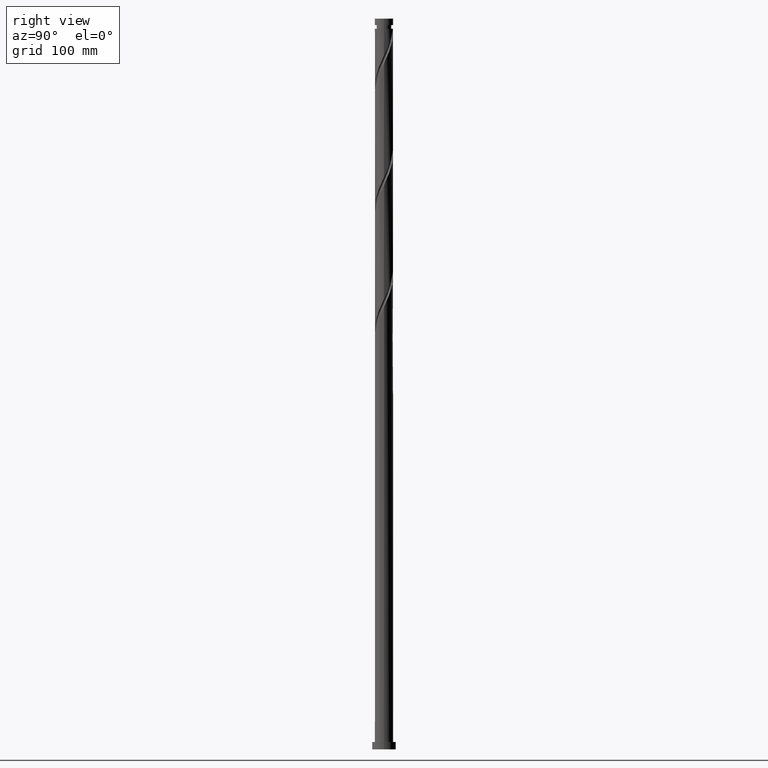
[diagram: clean part render]
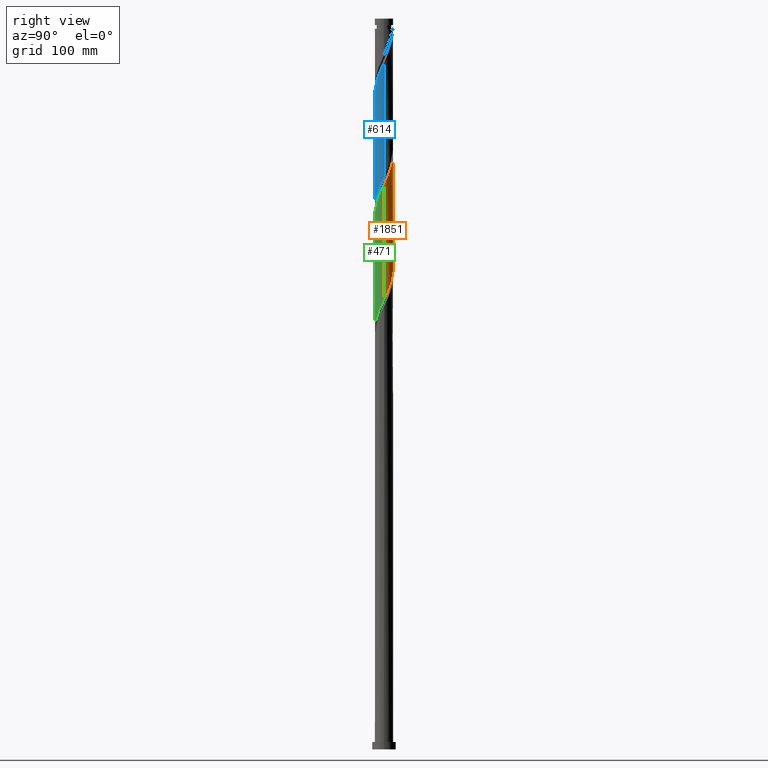
[diagram: same view with three faces highlighted in distinct colors, each labeled with its STEP entity id]
A machine part, right view with three faces highlighted in distinct colors.
Their STEP definitions:

[orange] entity #1851 — the highlighted cylindrical surface (edge-blend (fillet) strip) has radius 10 mm, axis along (-0, -0, -1).
#4 = CARTESIAN_POINT ( 'NONE',  ( -7.698012022128840393, 6.436398683911070506, 545.0387798783615381 ) ) ;
#24 = CARTESIAN_POINT ( 'NONE',  ( 8.129196827142976645, 5.882412435103549164, 506.4422886502914025 ) ) ;
#34 = CARTESIAN_POINT ( 'NONE',  ( 9.598750715611071627, 2.924141209081429604, 499.4247447906424213 ) ) ;
#44 = AXIS2_PLACEMENT_3D ( 'NONE', #1022, #717, #2330 ) ;
#74 = DIRECTION ( 'NONE',  ( -0.000000000000000000, -0.000000000000000000, -1.000000000000000000 ) ) ;
#102 =( BOUNDED_CURVE ( )  B_SPLINE_CURVE ( 2, ( #1807, #169, #894, #1411, #2151, #503, #1228, #154, #1844, #4, #577, #1874, #365, #1644, #743, #1675, #377, #1104, #775, #1094, #1831, #752, #225, #2021, #925, #1135, #1476, #2236, #388, #1632, #1126, #24, #588, #1115, #1315, #34, #1486, #2218, #208, #566, #729 ),
 .UNSPECIFIED., .F., .F. ) 
 B_SPLINE_CURVE_WITH_KNOTS ( ( 3, 2, 2, 2, 2, 2, 2, 2, 2, 2, 2, 2, 2, 2, 2, 2, 2, 2, 2, 2, 3 ),
 ( 0.6795295809515953245, 0.6842105263157894912, 0.6907894736842105088, 0.6973684210526315264, 0.7039473684210526550, 0.7105263157894736725, 0.7171052631578946901, 0.7236842105263158187, 0.7302631578947368363, 0.7368421052631578538, 0.7434210526315789824, 0.7500000000000000000, 0.7565789473684210176, 0.7631578947368421462, 0.7697368421052631637, 0.7763157894736841813, 0.7828947368421053099, 0.7894736842105263275, 0.7960526315789473450, 0.8026315789473684736, 0.8045295809515956575 ),
 .UNSPECIFIED. ) 
 CURVE ( )  GEOMETRIC_REPRESENTATION_ITEM ( )  RATIONAL_B_SPLINE_CURVE ( ( 0.9078162034606143127, 0.9068816855934213050, 0.9090909090909431445, 0.9059859027333700965, 0.9090909090909431445, 0.9059859027333700965, 0.9090909090909431445, 0.9059859027333700965, 0.9090909090909431445, 0.9059859027333700965, 0.9090909090909431445, 0.9059859027333700965, 0.9090909090909431445, 0.9059859027333700965, 0.9090909090909431445, 0.9059859027333700965, 0.9090909090909431445, 0.9059859027333700965, 0.9090909090909431445, 0.9059859027333700965, 0.9090909090909431445, 0.9059859027333700965, 0.9090909090909431445, 0.9059859027333700965, 0.9090909090909431445, 0.9059859027333700965, 0.9090909090909431445, 0.9059859027333700965, 0.9090909090909431445, 0.9059859027333700965, 0.9090909090909431445, 0.9059859027333700965, 0.9090909090909431445, 0.9059859027333700965, 0.9090909090909431445, 0.9059859027333700965, 0.9090909090909431445, 0.9059859027333700965, 0.9090909090909431445, 0.9081951262308917139, 0.9078162034606142017 ) ) 
 REPRESENTATION_ITEM ( '' )  );
#104 = CARTESIAN_POINT ( 'NONE',  ( -9.292644579133634508, 3.694151692323763836, 676.6177272467825787 ) ) ;
#147 = CARTESIAN_POINT ( 'NONE',  ( 7.698012022128849274, 6.436398683911067842, 632.7580781239756789 ) ) ;
#154 = CARTESIAN_POINT ( 'NONE',  ( -8.652417576018629930, 5.081563460323629933, 548.5475518081864266 ) ) ;
#163 = CARTESIAN_POINT ( 'NONE',  ( 9.370807733603886192, 3.588116432185851856, 625.7405342643262429 ) ) ;
#169 = CARTESIAN_POINT ( 'NONE',  ( -10.00000000000000888, 0.5889864175343123565, 558.5665007544391756 ) ) ;
#208 = CARTESIAN_POINT ( 'NONE',  ( 9.988632557599629536, 0.4766756017049183503, 494.1615868959054296 ) ) ;
#225 = CARTESIAN_POINT ( 'NONE',  ( 1.989974874213252809, 9.800000000000000711, 522.2317623345018092 ) ) ;
#297 = VERTEX_POINT ( 'NONE', #1772 ) ;
#304 = CARTESIAN_POINT ( 'NONE',  ( -3.575861195418844840, 9.338801674256604457, 659.0738675976598415 ) ) ;
#319 = CARTESIAN_POINT ( 'NONE',  ( -9.949134091119727685, 1.304357293080274482, 681.8808851415193431 ) ) ;
#332 = EDGE_CURVE ( 'NONE', #758, #1233, #102, .T. ) ;
#344 = VECTOR ( 'NONE', #74, 1000.000000000000000 ) ;
#365 = CARTESIAN_POINT ( 'NONE',  ( -5.862321014293805810, 8.101431498529709785, 539.7756219836248874 ) ) ;
#369 =( BOUNDED_CURVE ( )  B_SPLINE_CURVE ( 2, ( #887, #2145, #1434, #2161, #1390, #163, #679, #1800, #1045, #147, #860, #1222, #2129, #1257, #2337, #872, #695, #1378, #1616, #1421, #2352, #1005, #513, #498, #304, #1978, #1740, #2117, #470, #1194, #709, #1962, #1238, #485, #104, #1558, #1016, #319, #1583, #1209, #1752 ),
 .UNSPECIFIED., .F., .F. ) 
 B_SPLINE_CURVE_WITH_KNOTS ( ( 3, 2, 2, 2, 2, 2, 2, 2, 2, 2, 2, 2, 2, 2, 2, 2, 2, 2, 2, 2, 3 ),
 ( 0.4295295809515957686, 0.4342105263157894912, 0.4407894736842105088, 0.4473684210526315264, 0.4539473684210526550, 0.4605263157894736725, 0.4671052631578946901, 0.4736842105263158187, 0.4802631578947368363, 0.4868421052631578538, 0.4934210526315789824, 0.5000000000000000000, 0.5065789473684210176, 0.5131578947368420351, 0.5197368421052631637, 0.5263157894736842923, 0.5328947368421053099, 0.5394736842105263275, 0.5460526315789473450, 0.5526315789473683626, 0.5545295809515957686 ),
 .UNSPECIFIED. ) 
 CURVE ( )  GEOMETRIC_REPRESENTATION_ITEM ( )  RATIONAL_B_SPLINE_CURVE ( ( 0.9078162034606180875, 0.9068816855934254129, 0.9090909090909469192, 0.9059859027333740933, 0.9090909090909469192, 0.9059859027333740933, 0.9090909090909469192, 0.9059859027333740933, 0.9090909090909469192, 0.9059859027333740933, 0.9090909090909469192, 0.9059859027333740933, 0.9090909090909469192, 0.9059859027333740933, 0.9090909090909469192, 0.9059859027333740933, 0.9090909090909469192, 0.9059859027333740933, 0.9090909090909469192, 0.9059859027333740933, 0.9090909090909469192, 0.9059859027333740933, 0.9090909090909469192, 0.9059859027333740933, 0.9090909090909469192, 0.9059859027333740933, 0.9090909090909469192, 0.9059859027333740933, 0.9090909090909469192, 0.9059859027333740933, 0.9090909090909469192, 0.9059859027333740933, 0.9090909090909469192, 0.9059859027333740933, 0.9090909090909469192, 0.9059859027333740933, 0.9090909090909469192, 0.9059859027333740933, 0.9090909090909469192, 0.9081951262308954886, 0.9078162034606180875 ) ) 
 REPRESENTATION_ITEM ( '' )  );
#377 = CARTESIAN_POINT ( 'NONE',  ( -2.914153784332332631, 9.565966115414667570, 532.7580781239755652 ) ) ;
#388 = CARTESIAN_POINT ( 'NONE',  ( 6.414415119194313952, 7.671719408232513970, 511.7054465450280532 ) ) ;
#458 = EDGE_CURVE ( 'NONE', #297, #758, #1452, .T. ) ;
#470 = CARTESIAN_POINT ( 'NONE',  ( -6.414415119194313064, 7.671719408232525517, 666.0914114573090501 ) ) ;
#485 = CARTESIAN_POINT ( 'NONE',  ( -8.986538442656190284, 4.464162175566086965, 674.8633412818704755 ) ) ;
#498 = CARTESIAN_POINT ( 'NONE',  ( -2.802026026230766576, 9.635105980705032991, 657.3194816327475110 ) ) ;
#503 = CARTESIAN_POINT ( 'NONE',  ( -9.370807733603871981, 3.588116432185856741, 552.0563237380107466 ) ) ;
#513 = CARTESIAN_POINT ( 'NONE',  ( -1.989974874213248146, 9.800000000000007816, 655.5650956678350667 ) ) ;
#545 = CARTESIAN_POINT ( 'NONE',  ( -10.00000000000000178, 0.000000000000000000, 800.0000000000000000 ) ) ;
#566 = CARTESIAN_POINT ( 'NONE',  ( 10.00000000000000355, 0.2384733424516597144, 493.6566842203975511 ) ) ;
#577 = CARTESIAN_POINT ( 'NONE',  ( -7.115818394811933345, 7.026032206875808761, 543.2843939134494349 ) ) ;
#588 = CARTESIAN_POINT ( 'NONE',  ( 8.557867634899583464, 5.173287305334810071, 504.6879026853791288 ) ) ;
#632 = CARTESIAN_POINT ( 'NONE',  ( 10.00000000000000178, -4.627900892676237403E-15, 493.1503612019574234 ) ) ;
#679 = CARTESIAN_POINT ( 'NONE',  ( 9.011612654811258949, 4.334839946254741783, 627.4949202292388009 ) ) ;
#695 = CARTESIAN_POINT ( 'NONE',  ( 2.914153784332342845, 9.565966115414672899, 645.0387798783614244 ) ) ;
#709 = CARTESIAN_POINT ( 'NONE',  ( -7.589654370281420093, 6.511309126409864589, 669.6001833871334838 ) ) ;
#717 = DIRECTION ( 'NONE',  ( -0.000000000000000000, -0.000000000000000000, -1.000000000000000000 ) ) ;
#729 = CARTESIAN_POINT ( 'NONE',  ( 10.00000000000000355, -4.627900892676237403E-15, 493.1503612019574234 ) ) ;
#743 = CARTESIAN_POINT ( 'NONE',  ( -4.448914798436078399, 8.955844857759458932, 536.2668500538002263 ) ) ;
#752 = CARTESIAN_POINT ( 'NONE',  ( 1.177923722195735934, 9.964894019294979088, 523.9861482994142534 ) ) ;
#758 = VERTEX_POINT ( 'NONE', #1948 ) ;
#765 = EDGE_CURVE ( 'NONE', #2027, #297, #369, .T. ) ;
#775 = CARTESIAN_POINT ( 'NONE',  ( -1.299902251623954896, 9.915152754053920603, 529.2493061941510177 ) ) ;
#814 = CARTESIAN_POINT ( 'NONE',  ( 10.00000000000000178, 1.224646799147353454E-15, 800.0000000000000000 ) ) ;
#860 = CARTESIAN_POINT ( 'NONE',  ( 7.115818394811946668, 7.026032206875813202, 634.5124640888878957 ) ) ;
#872 = CARTESIAN_POINT ( 'NONE',  ( 3.706812335779582135, 9.324492448300055969, 643.2843939134494349 ) ) ;
#887 = CARTESIAN_POINT ( 'NONE',  ( 10.00000000000001421, -3.433603888114613474E-15, 617.9798301337131079 ) ) ;
#894 = CARTESIAN_POINT ( 'NONE',  ( -9.930858854084283038, 1.173900515484967322, 557.3194816327476246 ) ) ;
#925 = CARTESIAN_POINT ( 'NONE',  ( 3.575861195418849281, 9.338801674256592023, 518.7229904046772617 ) ) ;
#978 = CARTESIAN_POINT ( 'NONE',  ( 10.00000000000001421, -3.433603888114613474E-15, 617.9798301337131079 ) ) ;
#1005 = CARTESIAN_POINT ( 'NONE',  ( -1.177923722195730827, 9.964894019294989747, 653.8107097029228498 ) ) ;
#1016 = CARTESIAN_POINT ( 'NONE',  ( -9.773942403365401432, 2.114249251080857483, 680.1264991766072399 ) ) ;
#1022 = CARTESIAN_POINT ( 'NONE',  ( 0.000000000000000000, 0.000000000000000000, 800.0000000000000000 ) ) ;
#1045 = CARTESIAN_POINT ( 'NONE',  ( 8.175214799073742711, 5.758981072117353328, 631.0036921590634620 ) ) ;
#1061 = EDGE_CURVE ( 'NONE', #2027, #1233, #2243, .T. ) ;
#1094 = CARTESIAN_POINT ( 'NONE',  ( -0.4783092703628204490, 10.02286572557855493, 527.4949202292388009 ) ) ;
#1104 = CARTESIAN_POINT ( 'NONE',  ( -2.121495232885088900, 9.807439782529289829, 531.0036921590634620 ) ) ;
#1115 = CARTESIAN_POINT ( 'NONE',  ( 8.986538442656179626, 4.464162175566081636, 502.9335167204667982 ) ) ;
#1126 = CARTESIAN_POINT ( 'NONE',  ( 7.589654370281415652, 6.511309126409853043, 508.1966746152036194 ) ) ;
#1135 = CARTESIAN_POINT ( 'NONE',  ( 4.349696364606918664, 9.042497367808167041, 516.9686044397651585 ) ) ;
#1194 = CARTESIAN_POINT ( 'NONE',  ( -7.050111913419860876, 7.140205817716167580, 667.8457974222211533 ) ) ;
#1200 = ORIENTED_EDGE ( 'NONE', *, *, #332, .F. ) ;
#1209 = CARTESIAN_POINT ( 'NONE',  ( -10.00000000000001243, 0.2384733424516422839, 684.1401737819398932 ) ) ;
#1222 = CARTESIAN_POINT ( 'NONE',  ( 6.533624767495038732, 7.615665729840554121, 636.2668500537999989 ) ) ;
#1228 = CARTESIAN_POINT ( 'NONE',  ( -9.011612654811246514, 4.334839946254740894, 550.3019377730985298 ) ) ;
#1233 = VERTEX_POINT ( 'NONE', #632 ) ;
#1238 = CARTESIAN_POINT ( 'NONE',  ( -8.557867634899585241, 5.173287305334823394, 673.1089553169581450 ) ) ;
#1257 = CARTESIAN_POINT ( 'NONE',  ( 5.191017261092587098, 8.587197267218869001, 639.7756219836246601 ) ) ;
#1315 = CARTESIAN_POINT ( 'NONE',  ( 9.292644579133625626, 3.694151692323757175, 501.1791307555545245 ) ) ;
#1378 = CARTESIAN_POINT ( 'NONE',  ( 2.121495232885097781, 9.807439782529295158, 646.7931658432738686 ) ) ;
#1390 = CARTESIAN_POINT ( 'NONE',  ( 9.602197208846458665, 2.792455686742682186, 623.9861482994140260 ) ) ;
#1396 = CYLINDRICAL_SURFACE ( 'NONE', #44, 10.00000000000000178 ) ;
#1411 = CARTESIAN_POINT ( 'NONE',  ( -9.833586684089031138, 1.996794941299505632, 555.5650956678354078 ) ) ;
#1421 = CARTESIAN_POINT ( 'NONE',  ( 0.4783092703628226139, 10.02286572557856204, 650.3019377730984161 ) ) ;
#1434 = CARTESIAN_POINT ( 'NONE',  ( 9.930858854084291920, 1.173900515484962215, 620.4773763695894786 ) ) ;
#1452 = LINE ( 'NONE', #545, #1843 ) ;
#1476 = CARTESIAN_POINT ( 'NONE',  ( 5.064207344787845066, 8.622865183278520362, 515.2142184748527143 ) ) ;
#1486 = CARTESIAN_POINT ( 'NONE',  ( 9.773942403365396103, 2.114249251080854375, 497.6703588257299771 ) ) ;
#1558 = CARTESIAN_POINT ( 'NONE',  ( -9.598750715611075179, 2.924141209081439818, 678.3721132116945682 ) ) ;
#1583 = CARTESIAN_POINT ( 'NONE',  ( -9.988632557599636641, 0.4766756017049241234, 683.6352711064317873 ) ) ;
#1616 = CARTESIAN_POINT ( 'NONE',  ( 1.299902251623959337, 9.915152754053927708, 648.5475518081860855 ) ) ;
#1628 = ORIENTED_EDGE ( 'NONE', *, *, #458, .F. ) ;
#1632 = CARTESIAN_POINT ( 'NONE',  ( 7.050111913419857324, 7.140205817716160475, 509.9510605801160636 ) ) ;
#1644 = CARTESIAN_POINT ( 'NONE',  ( -5.191017261092578217, 8.587197267218870778, 538.0212360187125569 ) ) ;
#1675 = CARTESIAN_POINT ( 'NONE',  ( -3.706812335779576806, 9.324492448300048864, 534.5124640888880094 ) ) ;
#1740 = CARTESIAN_POINT ( 'NONE',  ( -5.064207344787845066, 8.622865183278527468, 662.5826395274842753 ) ) ;
#1752 = CARTESIAN_POINT ( 'NONE',  ( -10.00000000000001243, -8.330221606817192772E-15, 684.6464968003799640 ) ) ;
#1759 = FACE_OUTER_BOUND ( 'NONE', #2172, .T. ) ;
#1772 = CARTESIAN_POINT ( 'NONE',  ( -10.00000000000001243, -8.330221606817192772E-15, 684.6464968003799640 ) ) ;
#1800 = CARTESIAN_POINT ( 'NONE',  ( 8.652417576018637035, 5.081563460323630821, 629.2493061941510177 ) ) ;
#1807 = CARTESIAN_POINT ( 'NONE',  ( -10.00000000000000178, -2.696125487797833641E-14, 559.8170278686242227 ) ) ;
#1831 = CARTESIAN_POINT ( 'NONE',  ( 0.3498072259164571318, 9.993879872436764344, 525.7405342643264703 ) ) ;
#1843 = VECTOR ( 'NONE', #2050, 1000.000000000000000 ) ;
#1844 = CARTESIAN_POINT ( 'NONE',  ( -8.175214799073732053, 5.758981072117348887, 546.7931658432738686 ) ) ;
#1851 = ADVANCED_FACE ( 'NONE', ( #1759 ), #1396, .T. ) ;
#1874 = CARTESIAN_POINT ( 'NONE',  ( -6.533624767495032515, 7.615665729840548792, 541.5300079485371043 ) ) ;
#1948 = CARTESIAN_POINT ( 'NONE',  ( -10.00000000000000178, -2.696125487797833641E-14, 559.8170278686242227 ) ) ;
#1962 = CARTESIAN_POINT ( 'NONE',  ( -8.129196827142978421, 5.882412435103557158, 671.3545693520457007 ) ) ;
#1978 = CARTESIAN_POINT ( 'NONE',  ( -4.349696364606922216, 9.042497367808174147, 660.8282535625719447 ) ) ;
#2021 = CARTESIAN_POINT ( 'NONE',  ( 2.802026026230769240, 9.635105980705024109, 520.4773763695898197 ) ) ;
#2027 = VERTEX_POINT ( 'NONE', #978 ) ;
#2050 = DIRECTION ( 'NONE',  ( -0.000000000000000000, -0.000000000000000000, -1.000000000000000000 ) ) ;
#2117 = CARTESIAN_POINT ( 'NONE',  ( -5.778718324968768805, 8.203232998748884341, 664.3370254923966058 ) ) ;
#2129 = CARTESIAN_POINT ( 'NONE',  ( 5.862321014293816468, 8.101431498529711561, 638.0212360187125569 ) ) ;
#2145 = CARTESIAN_POINT ( 'NONE',  ( 10.00000000000001243, 0.5889864175343609842, 619.2303572478982687 ) ) ;
#2151 = CARTESIAN_POINT ( 'NONE',  ( -9.602197208846448007, 2.792455686742680854, 553.8107097029228498 ) ) ;
#2161 = CARTESIAN_POINT ( 'NONE',  ( 9.833586684089031138, 1.996794941299503634, 622.2317623345020365 ) ) ;
#2172 = EDGE_LOOP ( 'NONE', ( #2204, #2231, #1200, #1628 ) ) ;
#2204 = ORIENTED_EDGE ( 'NONE', *, *, #765, .F. ) ;
#2218 = CARTESIAN_POINT ( 'NONE',  ( 9.949134091119720580, 1.304357293080270708, 495.9159728608177602 ) ) ;
#2231 = ORIENTED_EDGE ( 'NONE', *, *, #1061, .T. ) ;
#2236 = CARTESIAN_POINT ( 'NONE',  ( 5.778718324968772357, 8.203232998748877236, 513.4598325099403837 ) ) ;
#2243 = LINE ( 'NONE', #814, #344 ) ;
#2330 = DIRECTION ( 'NONE',  ( -1.000000000000000000, 0.000000000000000000, 0.000000000000000000 ) ) ;
#2337 = CARTESIAN_POINT ( 'NONE',  ( 4.448914798436082840, 8.955844857759466038, 641.5300079485368769 ) ) ;
#2352 = CARTESIAN_POINT ( 'NONE',  ( -0.3498072259164496933, 9.993879872436775003, 652.0563237380107466 ) ) ;

[blue] entity #614 — the highlighted cylindrical surface (edge-blend (fillet) strip) has radius 10 mm, axis along (-0, -0, -1).
#27 = CARTESIAN_POINT ( 'NONE',  ( -8.652417576018633483, -5.081563460323631709, 695.9159728608175328 ) ) ;
#32 = CARTESIAN_POINT ( 'NONE',  ( 10.00000000000001243, 6.538776099974785674E-15, 751.3131634670464791 ) ) ;
#78 = CARTESIAN_POINT ( 'NONE',  ( -7.698012022128847498, -6.436398683911074059, 699.4247447906423076 ) ) ;
#116 = CARTESIAN_POINT ( 'NONE',  ( -5.064207344787842402, -8.622865183278520362, 581.8808851415193431 ) ) ;
#131 = CARTESIAN_POINT ( 'NONE',  ( 9.602197208846446230, -2.792455686742683518, 620.4773763695893649 ) ) ;
#143 = ORIENTED_EDGE ( 'NONE', *, *, #1995, .F. ) ;
#144 = CARTESIAN_POINT ( 'NONE',  ( -4.349696364606923105, -9.042497367808167041, 583.6352711064316736 ) ) ;
#160 = CARTESIAN_POINT ( 'NONE',  ( 10.00000000000000178, -4.627900892676237403E-15, 626.4836945352908515 ) ) ;
#203 = CARTESIAN_POINT ( 'NONE',  ( -10.00000000000001243, -8.330221606817192772E-15, 684.6464968003799640 ) ) ;
#205 = ORIENTED_EDGE ( 'NONE', *, *, #1234, .F. ) ;
#228 = CARTESIAN_POINT ( 'NONE',  ( 9.598750715611075179, -2.924141209081444703, 745.0387798783616518 ) ) ;
#240 = CARTESIAN_POINT ( 'NONE',  ( 5.778718324968767028, -8.203232998748886118, 731.0036921590632346 ) ) ;
#288 = CARTESIAN_POINT ( 'NONE',  ( 0.4783092703628174513, -10.02286572557855493, 594.1615868959055433 ) ) ;
#297 = VERTEX_POINT ( 'NONE', #1772 ) ;
#302 = CARTESIAN_POINT ( 'NONE',  ( 2.914153784332332187, -9.565966115414667570, 599.4247447906423076 ) ) ;
#316 = CARTESIAN_POINT ( 'NONE',  ( -9.773942403365396103, -2.114249251080851710, 564.3370254923964922 ) ) ;
#422 = CARTESIAN_POINT ( 'NONE',  ( -6.533624767495038732, -7.615665729840555009, 702.9335167204667414 ) ) ;
#431 = CARTESIAN_POINT ( 'NONE',  ( -5.191017261092582658, -8.587197267218872554, 706.4422886502914025 ) ) ;
#440 = CARTESIAN_POINT ( 'NONE',  ( 8.557867634899581688, -5.173287305334827835, 739.7756219836247737 ) ) ;
#450 = CARTESIAN_POINT ( 'NONE',  ( 10.00000000000001066, -0.2384733424516847222, 750.8068404486062946 ) ) ;
#458 = EDGE_CURVE ( 'NONE', #297, #758, #1452, .T. ) ;
#483 = CARTESIAN_POINT ( 'NONE',  ( -1.177923722195739042, -9.964894019294979088, 590.6528149660808822 ) ) ;
#496 = CARTESIAN_POINT ( 'NONE',  ( -7.589654370281414764, -6.511309126409855708, 574.8633412818703619 ) ) ;
#510 = CARTESIAN_POINT ( 'NONE',  ( -5.778718324968770581, -8.203232998748877236, 580.1264991766071262 ) ) ;
#520 = EDGE_LOOP ( 'NONE', ( #900, #143, #1379, #205 ) ) ;
#545 = CARTESIAN_POINT ( 'NONE',  ( -10.00000000000000178, 0.000000000000000000, 800.0000000000000000 ) ) ;
#590 = CARTESIAN_POINT ( 'NONE',  ( 1.989974874213249700, -9.800000000000007816, 722.2317623345019229 ) ) ;
#601 = CARTESIAN_POINT ( 'NONE',  ( 8.986538442656188508, -4.464162175566089630, 741.5300079485371043 ) ) ;
#614 = ADVANCED_FACE ( 'NONE', ( #965 ), #2285, .T. ) ;
#664 = CARTESIAN_POINT ( 'NONE',  ( 4.448914798436076623, -8.955844857759458932, 602.9335167204667414 ) ) ;
#686 = VERTEX_POINT ( 'NONE', #2309 ) ;
#735 = VECTOR ( 'NONE', #2060, 1000.000000000000000 ) ;
#758 = VERTEX_POINT ( 'NONE', #1948 ) ;
#786 = CARTESIAN_POINT ( 'NONE',  ( 3.575861195418843952, -9.338801674256608010, 725.7405342643262429 ) ) ;
#798 = CARTESIAN_POINT ( 'NONE',  ( 8.129196827142978421, -5.882412435103561599, 738.0212360187123295 ) ) ;
#834 = CARTESIAN_POINT ( 'NONE',  ( 10.00000000000000888, -0.5889864175343018093, 625.2331674211055770 ) ) ;
#846 = CARTESIAN_POINT ( 'NONE',  ( -9.292644579133625626, -3.694151692323757619, 567.8457974222210396 ) ) ;
#858 = CARTESIAN_POINT ( 'NONE',  ( -6.414415119194310400, -7.671719408232515747, 578.3721132116949093 ) ) ;
#869 = CARTESIAN_POINT ( 'NONE',  ( 9.011612654811246514, -4.334839946254740006, 616.9686044397650448 ) ) ;
#884 = CARTESIAN_POINT ( 'NONE',  ( 7.698012022128834175, -6.436398683911074947, 611.7054465450285079 ) ) ;
#900 = ORIENTED_EDGE ( 'NONE', *, *, #931, .F. ) ;
#928 = CARTESIAN_POINT ( 'NONE',  ( -9.602197208846458665, -2.792455686742681298, 690.6528149660807685 ) ) ;
#931 = EDGE_CURVE ( 'NONE', #2338, #686, #1078, .T. ) ;
#945 = CARTESIAN_POINT ( 'NONE',  ( -9.930858854084291920, -1.173900515484965545, 687.1440430362562211 ) ) ;
#965 = FACE_OUTER_BOUND ( 'NONE', #520, .T. ) ;
#968 = CARTESIAN_POINT ( 'NONE',  ( -7.115818394811944003, -7.026032206875813202, 701.1791307555545245 ) ) ;
#995 = DIRECTION ( 'NONE',  ( -0.000000000000000000, -0.000000000000000000, -1.000000000000000000 ) ) ;
#1014 = CARTESIAN_POINT ( 'NONE',  ( 8.175214799073730276, -5.758981072117353328, 613.4598325099403837 ) ) ;
#1042 = CARTESIAN_POINT ( 'NONE',  ( 5.862321014293801369, -8.101431498529711561, 606.4422886502912888 ) ) ;
#1078 = LINE ( 'NONE', #1814, #735 ) ;
#1118 = CARTESIAN_POINT ( 'NONE',  ( -9.833586684089031138, -1.996794941299504966, 688.8984290011684379 ) ) ;
#1137 = CARTESIAN_POINT ( 'NONE',  ( 6.414415119194313064, -7.671719408232525517, 732.7580781239756789 ) ) ;
#1149 = CARTESIAN_POINT ( 'NONE',  ( -3.706812335779580359, -9.324492448300055969, 709.9510605801159500 ) ) ;
#1156 = DIRECTION ( 'NONE',  ( -1.000000000000000000, 0.000000000000000000, 0.000000000000000000 ) ) ;
#1157 = CARTESIAN_POINT ( 'NONE',  ( 9.773942403365401432, -2.114249251080861480, 746.7931658432739823 ) ) ;
#1166 = CARTESIAN_POINT ( 'NONE',  ( 9.292644579133634508, -3.694151692323763836, 743.2843939134492075 ) ) ;
#1183 = CARTESIAN_POINT ( 'NONE',  ( 3.706812335779575029, -9.324492448300050640, 601.1791307555546382 ) ) ;
#1206 = CARTESIAN_POINT ( 'NONE',  ( -8.557867634899579912, -5.173287305334816288, 571.3545693520457007 ) ) ;
#1220 = CARTESIAN_POINT ( 'NONE',  ( -8.129196827142973092, -5.882412435103552717, 573.1089553169582587 ) ) ;
#1234 = EDGE_CURVE ( 'NONE', #686, #758, #2008, .T. ) ;
#1235 = CARTESIAN_POINT ( 'NONE',  ( -1.989974874213251477, -9.800000000000000711, 588.8984290011684379 ) ) ;
#1279 = CARTESIAN_POINT ( 'NONE',  ( -9.370807733603882639, -3.588116432185857185, 692.4072009309932128 ) ) ;
#1333 = AXIS2_PLACEMENT_3D ( 'NONE', #1367, #995, #1156 ) ;
#1348 = CARTESIAN_POINT ( 'NONE',  ( -0.4783092703628256670, -10.02286572557856204, 716.9686044397648175 ) ) ;
#1356 = CARTESIAN_POINT ( 'NONE',  ( -8.175214799073742711, -5.758981072117351552, 697.6703588257299771 ) ) ;
#1366 = CARTESIAN_POINT ( 'NONE',  ( 7.115818394811933345, -7.026032206875808761, 609.9510605801159500 ) ) ;
#1367 = CARTESIAN_POINT ( 'NONE',  ( 0.000000000000000000, 0.000000000000000000, 800.0000000000000000 ) ) ;
#1377 = CARTESIAN_POINT ( 'NONE',  ( -10.00000000000000178, -2.696125487797833641E-14, 559.8170278686242227 ) ) ;
#1379 = ORIENTED_EDGE ( 'NONE', *, *, #458, .T. ) ;
#1401 = CARTESIAN_POINT ( 'NONE',  ( 9.833586684089031138, -1.996794941299506743, 622.2317623345021502 ) ) ;
#1452 = LINE ( 'NONE', #545, #1843 ) ;
#1497 = CARTESIAN_POINT ( 'NONE',  ( 0.3498072259164552444, -9.993879872436775003, 718.7229904046774891 ) ) ;
#1528 = CARTESIAN_POINT ( 'NONE',  ( 4.349696364606918664, -9.042497367808181252, 727.4949202292388009 ) ) ;
#1581 = CARTESIAN_POINT ( 'NONE',  ( -8.986538442656179626, -4.464162175566084301, 569.6001833871334838 ) ) ;
#1595 = CARTESIAN_POINT ( 'NONE',  ( -10.00000000000000000, -0.2384733424517053724, 560.3233508870641799 ) ) ;
#1613 = CARTESIAN_POINT ( 'NONE',  ( 1.299902251623954008, -9.915152754053920603, 595.9159728608175328 ) ) ;
#1656 = CARTESIAN_POINT ( 'NONE',  ( -9.011612654811258949, -4.334839946254744447, 694.1615868959053159 ) ) ;
#1661 =( BOUNDED_CURVE ( )  B_SPLINE_CURVE ( 2, ( #203, #2200, #945, #1118, #928, #1279, #1656, #27, #1356, #78, #968, #422, #1700, #431, #2067, #1149, #2248, #2095, #2087, #1348, #1497, #1888, #590, #2052, #786, #1528, #2079, #240, #1137, #1903, #2270, #798, #440, #601, #1166, #228, #1157, #1912, #1690, #450, #1895 ),
 .UNSPECIFIED., .F., .F. ) 
 B_SPLINE_CURVE_WITH_KNOTS ( ( 3, 2, 2, 2, 2, 2, 2, 2, 2, 2, 2, 2, 2, 2, 2, 2, 2, 2, 2, 2, 3 ),
 ( 0.5545295809515957686, 0.5592105263157894912, 0.5657894736842105088, 0.5723684210526316374, 0.5789473684210526550, 0.5855263157894736725, 0.5921052631578946901, 0.5986842105263157077, 0.6052631578947368363, 0.6118421052631579649, 0.6184210526315789824, 0.6250000000000000000, 0.6315789473684210176, 0.6381578947368420351, 0.6447368421052631637, 0.6513157894736842923, 0.6578947368421053099, 0.6644736842105263275, 0.6710526315789473450, 0.6776315789473683626, 0.6795295809515954355 ),
 .UNSPECIFIED. ) 
 CURVE ( )  GEOMETRIC_REPRESENTATION_ITEM ( )  RATIONAL_B_SPLINE_CURVE ( ( 0.9078162034606180875, 0.9068816855934255239, 0.9090909090909469192, 0.9059859027333740933, 0.9090909090909469192, 0.9059859027333740933, 0.9090909090909469192, 0.9059859027333740933, 0.9090909090909469192, 0.9059859027333740933, 0.9090909090909469192, 0.9059859027333740933, 0.9090909090909469192, 0.9059859027333740933, 0.9090909090909469192, 0.9059859027333740933, 0.9090909090909469192, 0.9059859027333740933, 0.9090909090909469192, 0.9059859027333740933, 0.9090909090909469192, 0.9059859027333740933, 0.9090909090909469192, 0.9059859027333740933, 0.9090909090909469192, 0.9059859027333740933, 0.9090909090909469192, 0.9059859027333740933, 0.9090909090909469192, 0.9059859027333740933, 0.9090909090909469192, 0.9059859027333740933, 0.9090909090909469192, 0.9059859027333740933, 0.9090909090909469192, 0.9059859027333740933, 0.9090909090909469192, 0.9059859027333740933, 0.9090909090909469192, 0.9081951262308957107, 0.9078162034606181985 ) ) 
 REPRESENTATION_ITEM ( '' )  );
#1690 = CARTESIAN_POINT ( 'NONE',  ( 9.988632557599636641, -0.4766756017049229577, 750.3019377730984161 ) ) ;
#1700 = CARTESIAN_POINT ( 'NONE',  ( -5.862321014293812027, -8.101431498529713338, 704.6879026853789583 ) ) ;
#1739 = CARTESIAN_POINT ( 'NONE',  ( 9.930858854084283038, -1.173900515484965767, 623.9861482994142534 ) ) ;
#1750 = CARTESIAN_POINT ( 'NONE',  ( 6.533624767495030738, -7.615665729840552345, 608.1966746152037331 ) ) ;
#1764 = CARTESIAN_POINT ( 'NONE',  ( -2.802026026230768352, -9.635105980705025885, 587.1440430362564484 ) ) ;
#1772 = CARTESIAN_POINT ( 'NONE',  ( -10.00000000000001243, -8.330221606817192772E-15, 684.6464968003799640 ) ) ;
#1778 = CARTESIAN_POINT ( 'NONE',  ( -9.988632557599629536, -0.4766756017049214589, 560.8282535625719447 ) ) ;
#1795 = CARTESIAN_POINT ( 'NONE',  ( -3.575861195418843064, -9.338801674256592023, 585.3896570713438905 ) ) ;
#1814 = CARTESIAN_POINT ( 'NONE',  ( 10.00000000000000178, 1.224646799147353454E-15, 800.0000000000000000 ) ) ;
#1843 = VECTOR ( 'NONE', #2050, 1000.000000000000000 ) ;
#1888 = CARTESIAN_POINT ( 'NONE',  ( 1.177923722195732159, -9.964894019294989747, 720.4773763695893649 ) ) ;
#1895 = CARTESIAN_POINT ( 'NONE',  ( 10.00000000000001066, 6.538776099974785674E-15, 751.3131634670464791 ) ) ;
#1903 = CARTESIAN_POINT ( 'NONE',  ( 7.050111913419858212, -7.140205817716171133, 734.5124640888880094 ) ) ;
#1912 = CARTESIAN_POINT ( 'NONE',  ( 9.949134091119727685, -1.304357293080275815, 748.5475518081858581 ) ) ;
#1922 = CARTESIAN_POINT ( 'NONE',  ( -9.598750715611069850, -2.924141209081435822, 566.0914114573090501 ) ) ;
#1946 = CARTESIAN_POINT ( 'NONE',  ( 5.191017261092574664, -8.587197267218870778, 604.6879026853791856 ) ) ;
#1948 = CARTESIAN_POINT ( 'NONE',  ( -10.00000000000000178, -2.696125487797833641E-14, 559.8170278686242227 ) ) ;
#1960 = CARTESIAN_POINT ( 'NONE',  ( -9.949134091119718803, -1.304357293080271818, 562.5826395274842753 ) ) ;
#1995 = EDGE_CURVE ( 'NONE', #297, #2338, #1661, .T. ) ;
#2008 =( BOUNDED_CURVE ( )  B_SPLINE_CURVE ( 2, ( #160, #834, #1739, #1401, #131, #2142, #869, #2116, #1014, #884, #1366, #1750, #1042, #1946, #664, #1183, #302, #2128, #1613, #288, #2307, #483, #1235, #1764, #1795, #144, #116, #510, #858, #2157, #496, #1220, #1206, #1581, #846, #1922, #316, #1960, #1778, #1595, #1377 ),
 .UNSPECIFIED., .F., .T. ) 
 B_SPLINE_CURVE_WITH_KNOTS ( ( 3, 2, 2, 2, 2, 2, 2, 2, 2, 2, 2, 2, 2, 2, 2, 2, 2, 2, 2, 2, 3 ),
 ( 0.5545295809515952135, 0.5592105263157894912, 0.5657894736842105088, 0.5723684210526315264, 0.5789473684210526550, 0.5855263157894736725, 0.5921052631578946901, 0.5986842105263158187, 0.6052631578947368363, 0.6118421052631578538, 0.6184210526315789824, 0.6250000000000000000, 0.6315789473684210176, 0.6381578947368421462, 0.6447368421052631637, 0.6513157894736841813, 0.6578947368421053099, 0.6644736842105263275, 0.6710526315789473450, 0.6776315789473684736, 0.6795295809515953245 ),
 .UNSPECIFIED. ) 
 CURVE ( )  GEOMETRIC_REPRESENTATION_ITEM ( )  RATIONAL_B_SPLINE_CURVE ( ( 0.9078162034606143127, 0.9068816855934213050, 0.9090909090909431445, 0.9059859027333700965, 0.9090909090909431445, 0.9059859027333700965, 0.9090909090909431445, 0.9059859027333700965, 0.9090909090909431445, 0.9059859027333700965, 0.9090909090909431445, 0.9059859027333700965, 0.9090909090909431445, 0.9059859027333700965, 0.9090909090909431445, 0.9059859027333700965, 0.9090909090909431445, 0.9059859027333700965, 0.9090909090909431445, 0.9059859027333700965, 0.9090909090909431445, 0.9059859027333700965, 0.9090909090909431445, 0.9059859027333700965, 0.9090909090909431445, 0.9059859027333700965, 0.9090909090909431445, 0.9059859027333700965, 0.9090909090909431445, 0.9059859027333700965, 0.9090909090909431445, 0.9059859027333700965, 0.9090909090909431445, 0.9059859027333700965, 0.9090909090909431445, 0.9059859027333700965, 0.9090909090909431445, 0.9059859027333700965, 0.9090909090909431445, 0.9081951262308919359, 0.9078162034606143127 ) ) 
 REPRESENTATION_ITEM ( '' )  );
#2050 = DIRECTION ( 'NONE',  ( -0.000000000000000000, -0.000000000000000000, -1.000000000000000000 ) ) ;
#2052 = CARTESIAN_POINT ( 'NONE',  ( 2.802026026230763023, -9.635105980705032991, 723.9861482994141397 ) ) ;
#2060 = DIRECTION ( 'NONE',  ( -0.000000000000000000, -0.000000000000000000, -1.000000000000000000 ) ) ;
#2067 = CARTESIAN_POINT ( 'NONE',  ( -4.448914798436081952, -8.955844857759466038, 708.1966746152035057 ) ) ;
#2079 = CARTESIAN_POINT ( 'NONE',  ( 5.064207344787845066, -8.622865183278531021, 729.2493061941509040 ) ) ;
#2087 = CARTESIAN_POINT ( 'NONE',  ( -1.299902251623958227, -9.915152754053927708, 715.2142184748527143 ) ) ;
#2095 = CARTESIAN_POINT ( 'NONE',  ( -2.121495232885096893, -9.807439782529295158, 713.4598325099402700 ) ) ;
#2116 = CARTESIAN_POINT ( 'NONE',  ( 8.652417576018629930, -5.081563460323630821, 615.2142184748528280 ) ) ;
#2128 = CARTESIAN_POINT ( 'NONE',  ( 2.121495232885086679, -9.807439782529289829, 597.6703588257299771 ) ) ;
#2142 = CARTESIAN_POINT ( 'NONE',  ( 9.370807733603871981, -3.588116432185861626, 618.7229904046773754 ) ) ;
#2157 = CARTESIAN_POINT ( 'NONE',  ( -7.050111913419854659, -7.140205817716160475, 576.6177272467826924 ) ) ;
#2200 = CARTESIAN_POINT ( 'NONE',  ( -10.00000000000000533, -0.5889864175343754171, 685.8970239145652386 ) ) ;
#2248 = CARTESIAN_POINT ( 'NONE',  ( -2.914153784332338404, -9.565966115414674675, 711.7054465450281668 ) ) ;
#2270 = CARTESIAN_POINT ( 'NONE',  ( 7.589654370281420093, -6.511309126409864589, 736.2668500538001126 ) ) ;
#2285 = CYLINDRICAL_SURFACE ( 'NONE', #1333, 10.00000000000000178 ) ;
#2307 = CARTESIAN_POINT ( 'NONE',  ( -0.3498072259164587416, -9.993879872436766121, 592.4072009309929854 ) ) ;
#2309 = CARTESIAN_POINT ( 'NONE',  ( 10.00000000000000178, -4.627900892676237403E-15, 626.4836945352908515 ) ) ;
#2338 = VERTEX_POINT ( 'NONE', #32 ) ;

[green] entity #471 — the highlighted cylindrical surface (edge-blend (fillet) strip) has radius 10 mm, axis along (-0, -0, -1).
#74 = DIRECTION ( 'NONE',  ( -0.000000000000000000, -0.000000000000000000, -1.000000000000000000 ) ) ;
#110 = CARTESIAN_POINT ( 'NONE',  ( -0.4783092703628256670, -10.02286572557856204, 583.6352711064316736 ) ) ;
#122 = CARTESIAN_POINT ( 'NONE',  ( 1.299902251623954008, -9.915152754053920603, 462.5826395274843321 ) ) ;
#135 = CARTESIAN_POINT ( 'NONE',  ( -9.988632557599629536, -0.4766756017049214589, 427.4949202292387440 ) ) ;
#151 = CARTESIAN_POINT ( 'NONE',  ( -9.773942403365396103, -2.114249251080851710, 431.0036921590633483 ) ) ;
#155 = CARTESIAN_POINT ( 'NONE',  ( 0.3498072259164552444, -9.993879872436775003, 585.3896570713441179 ) ) ;
#170 = CARTESIAN_POINT ( 'NONE',  ( 10.00000000000001243, -0.2384733424516528311, 617.4735071152729233 ) ) ;
#180 = CARTESIAN_POINT ( 'NONE',  ( -6.414415119194310400, -7.671719408232515747, 445.0387798783615381 ) ) ;
#190 = FACE_OUTER_BOUND ( 'NONE', #1270, .T. ) ;
#273 = CARTESIAN_POINT ( 'NONE',  ( -10.00000000000000178, -0.2384733424516914113, 426.9900175537309792 ) ) ;
#283 = CARTESIAN_POINT ( 'NONE',  ( 5.778718324968767028, -8.203232998748886118, 597.6703588257299771 ) ) ;
#307 = CARTESIAN_POINT ( 'NONE',  ( -9.292644579133625626, -3.694151692323757619, 434.5124640888879526 ) ) ;
#312 = CARTESIAN_POINT ( 'NONE',  ( -10.00000000000000178, -2.696125487797833641E-14, 426.4836945352908515 ) ) ;
#322 = CARTESIAN_POINT ( 'NONE',  ( -1.989974874213251477, -9.800000000000000711, 455.5650956678351804 ) ) ;
#326 = CARTESIAN_POINT ( 'NONE',  ( -7.698012022128847498, -6.436398683911074059, 566.0914114573089364 ) ) ;
#342 = CARTESIAN_POINT ( 'NONE',  ( 9.988632557599636641, -0.4766756017049229577, 616.9686044397649312 ) ) ;
#344 = VECTOR ( 'NONE', #74, 1000.000000000000000 ) ;
#397 = EDGE_CURVE ( 'NONE', #514, #1794, #400, .T. ) ;
#400 = LINE ( 'NONE', #1306, #835 ) ;
#466 = CARTESIAN_POINT ( 'NONE',  ( -7.115818394811944003, -7.026032206875813202, 567.8457974222210396 ) ) ;
#471 = ADVANCED_FACE ( 'NONE', ( #190 ), #556, .T. ) ;
#478 = CARTESIAN_POINT ( 'NONE',  ( 10.00000000000001421, -3.433603888114613474E-15, 617.9798301337131079 ) ) ;
#488 = CARTESIAN_POINT ( 'NONE',  ( -8.557867634899579912, -5.173287305334816288, 438.0212360187123863 ) ) ;
#504 = CARTESIAN_POINT ( 'NONE',  ( -4.448914798436081952, -8.955844857759466038, 574.8633412818703619 ) ) ;
#514 = VERTEX_POINT ( 'NONE', #1688 ) ;
#521 = CARTESIAN_POINT ( 'NONE',  ( 8.557867634899581688, -5.173287305334827835, 606.4422886502914025 ) ) ;
#525 = ORIENTED_EDGE ( 'NONE', *, *, #1061, .F. ) ;
#556 = CYLINDRICAL_SURFACE ( 'NONE', #985, 10.00000000000000178 ) ;
#627 = CARTESIAN_POINT ( 'NONE',  ( -10.00000000000000178, -2.696125487797833641E-14, 426.4836945352908515 ) ) ;
#632 = CARTESIAN_POINT ( 'NONE',  ( 10.00000000000000178, -4.627900892676237403E-15, 493.1503612019574234 ) ) ;
#660 = CARTESIAN_POINT ( 'NONE',  ( 7.050111913419858212, -7.140205817716171133, 601.1791307555544108 ) ) ;
#667 = CARTESIAN_POINT ( 'NONE',  ( -5.064207344787842402, -8.622865183278520362, 448.5475518081861424 ) ) ;
#671 = CARTESIAN_POINT ( 'NONE',  ( -9.930858854084291920, -1.173900515484965545, 553.8107097029230772 ) ) ;
#682 = CARTESIAN_POINT ( 'NONE',  ( -8.986538442656179626, -4.464162175566084301, 436.2668500538001695 ) ) ;
#687 = CARTESIAN_POINT ( 'NONE',  ( -9.370807733603882639, -3.588116432185857185, 559.0738675976597278 ) ) ;
#702 = CARTESIAN_POINT ( 'NONE',  ( 3.575861195418843952, -9.338801674256608010, 592.4072009309932128 ) ) ;
#713 = CARTESIAN_POINT ( 'NONE',  ( 2.914153784332332187, -9.565966115414667570, 466.0914114573089364 ) ) ;
#763 = DIRECTION ( 'NONE',  ( -1.000000000000000000, 0.000000000000000000, 0.000000000000000000 ) ) ;
#814 = CARTESIAN_POINT ( 'NONE',  ( 10.00000000000000178, 1.224646799147353454E-15, 800.0000000000000000 ) ) ;
#835 = VECTOR ( 'NONE', #1465, 1000.000000000000000 ) ;
#842 = CARTESIAN_POINT ( 'NONE',  ( 7.589654370281420093, -6.511309126409864589, 602.9335167204667414 ) ) ;
#849 = CARTESIAN_POINT ( 'NONE',  ( -0.3498072259164587416, -9.993879872436766121, 459.0738675976598415 ) ) ;
#864 = CARTESIAN_POINT ( 'NONE',  ( -9.833586684089031138, -1.996794941299504966, 555.5650956678351804 ) ) ;
#891 = CARTESIAN_POINT ( 'NONE',  ( 10.00000000000000178, -0.5889864175343575425, 491.8998340877721489 ) ) ;
#896 = CARTESIAN_POINT ( 'NONE',  ( 8.129196827142978421, -5.882412435103561599, 604.6879026853791856 ) ) ;
#933 = CARTESIAN_POINT ( 'NONE',  ( 0.000000000000000000, 0.000000000000000000, 800.0000000000000000 ) ) ;
#943 = DIRECTION ( 'NONE',  ( -0.000000000000000000, -0.000000000000000000, -1.000000000000000000 ) ) ;
#978 = CARTESIAN_POINT ( 'NONE',  ( 10.00000000000001421, -3.433603888114613474E-15, 617.9798301337131079 ) ) ;
#985 = AXIS2_PLACEMENT_3D ( 'NONE', #933, #943, #763 ) ;
#1033 = CARTESIAN_POINT ( 'NONE',  ( -9.598750715611069850, -2.924141209081435822, 432.7580781239756220 ) ) ;
#1037 = CARTESIAN_POINT ( 'NONE',  ( -9.602197208846458665, -2.792455686742681298, 557.3194816327477383 ) ) ;
#1052 = CARTESIAN_POINT ( 'NONE',  ( -8.175214799073742711, -5.758981072117351552, 564.3370254923967195 ) ) ;
#1061 = EDGE_CURVE ( 'NONE', #2027, #1233, #2243, .T. ) ;
#1083 = CARTESIAN_POINT ( 'NONE',  ( 0.4783092703628174513, -10.02286572557855493, 460.8282535625721721 ) ) ;
#1165 =( BOUNDED_CURVE ( )  B_SPLINE_CURVE ( 2, ( #1786, #891, #1951, #1381, #1197, #1573, #2340, #1225, #1212, #1936, #1620, #1424, #1586, #2357, #1393, #2164, #713, #1755, #122, #1083, #849, #1437, #322, #2181, #1262, #1999, #667, #1818, #180, #2313, #2133, #2148, #488, #682, #307, #1033, #151, #1769, #135, #273, #312 ),
 .UNSPECIFIED., .F., .T. ) 
 B_SPLINE_CURVE_WITH_KNOTS ( ( 3, 2, 2, 2, 2, 2, 2, 2, 2, 2, 2, 2, 2, 2, 2, 2, 2, 2, 2, 2, 3 ),
 ( 0.8045295809515956575, 0.8092105263157894912, 0.8157894736842105088, 0.8223684210526315264, 0.8289473684210526550, 0.8355263157894736725, 0.8421052631578946901, 0.8486842105263158187, 0.8552631578947368363, 0.8618421052631578538, 0.8684210526315789824, 0.8750000000000000000, 0.8815789473684210176, 0.8881578947368421462, 0.8947368421052631637, 0.9013157894736841813, 0.9078947368421053099, 0.9144736842105263275, 0.9210526315789473450, 0.9276315789473684736, 0.9295295809515954355 ),
 .UNSPECIFIED. ) 
 CURVE ( )  GEOMETRIC_REPRESENTATION_ITEM ( )  RATIONAL_B_SPLINE_CURVE ( ( 0.9078162034606142017, 0.9068816855934214161, 0.9090909090909431445, 0.9059859027333700965, 0.9090909090909431445, 0.9059859027333700965, 0.9090909090909431445, 0.9059859027333700965, 0.9090909090909431445, 0.9059859027333700965, 0.9090909090909431445, 0.9059859027333700965, 0.9090909090909431445, 0.9059859027333700965, 0.9090909090909431445, 0.9059859027333700965, 0.9090909090909431445, 0.9059859027333700965, 0.9090909090909431445, 0.9059859027333700965, 0.9090909090909431445, 0.9059859027333700965, 0.9090909090909431445, 0.9059859027333700965, 0.9090909090909431445, 0.9059859027333700965, 0.9090909090909431445, 0.9059859027333700965, 0.9090909090909431445, 0.9059859027333700965, 0.9090909090909431445, 0.9059859027333700965, 0.9090909090909431445, 0.9059859027333700965, 0.9090909090909431445, 0.9059859027333700965, 0.9090909090909431445, 0.9059859027333700965, 0.9090909090909431445, 0.9081951262308918249, 0.9078162034606143127 ) ) 
 REPRESENTATION_ITEM ( '' )  );
#1189 = CARTESIAN_POINT ( 'NONE',  ( -3.706812335779580359, -9.324492448300055969, 576.6177272467824650 ) ) ;
#1197 = CARTESIAN_POINT ( 'NONE',  ( 9.602197208846446230, -2.792455686742683518, 487.1440430362563347 ) ) ;
#1201 = CARTESIAN_POINT ( 'NONE',  ( -9.011612654811258949, -4.334839946254744447, 560.8282535625721721 ) ) ;
#1212 = CARTESIAN_POINT ( 'NONE',  ( 8.175214799073730276, -5.758981072117353328, 480.1264991766072399 ) ) ;
#1225 = CARTESIAN_POINT ( 'NONE',  ( 8.652417576018629930, -5.081563460323630821, 481.8808851415195704 ) ) ;
#1229 = CARTESIAN_POINT ( 'NONE',  ( -2.914153784332338404, -9.565966115414674675, 578.3721132116950230 ) ) ;
#1233 = VERTEX_POINT ( 'NONE', #632 ) ;
#1246 = CARTESIAN_POINT ( 'NONE',  ( 8.986538442656188508, -4.464162175566089630, 608.1966746152036194 ) ) ;
#1262 = CARTESIAN_POINT ( 'NONE',  ( -3.575861195418843064, -9.338801674256592023, 452.0563237380106898 ) ) ;
#1270 = EDGE_LOOP ( 'NONE', ( #525, #2178, #2360, #1801 ) ) ;
#1306 = CARTESIAN_POINT ( 'NONE',  ( -10.00000000000000178, 0.000000000000000000, 800.0000000000000000 ) ) ;
#1381 = CARTESIAN_POINT ( 'NONE',  ( 9.833586684089031138, -1.996794941299506743, 488.8984290011687222 ) ) ;
#1385 = CARTESIAN_POINT ( 'NONE',  ( 9.773942403365401432, -2.114249251080861480, 613.4598325099403837 ) ) ;
#1393 = CARTESIAN_POINT ( 'NONE',  ( 4.448914798436076623, -8.955844857759458932, 469.6001833871335407 ) ) ;
#1412 = CARTESIAN_POINT ( 'NONE',  ( -6.533624767495038732, -7.615665729840555009, 569.6001833871334838 ) ) ;
#1424 = CARTESIAN_POINT ( 'NONE',  ( 6.533624767495030738, -7.615665729840552345, 474.8633412818703619 ) ) ;
#1427 = CARTESIAN_POINT ( 'NONE',  ( -1.299902251623958227, -9.915152754053927708, 581.8808851415194567 ) ) ;
#1437 = CARTESIAN_POINT ( 'NONE',  ( -1.177923722195739042, -9.964894019294979088, 457.3194816327474541 ) ) ;
#1465 = DIRECTION ( 'NONE',  ( -0.000000000000000000, -0.000000000000000000, -1.000000000000000000 ) ) ;
#1563 = CARTESIAN_POINT ( 'NONE',  ( 4.349696364606918664, -9.042497367808181252, 594.1615868959052023 ) ) ;
#1567 = EDGE_CURVE ( 'NONE', #1233, #1794, #1165, .T. ) ;
#1573 = CARTESIAN_POINT ( 'NONE',  ( 9.370807733603871981, -3.588116432185861626, 485.3896570713440610 ) ) ;
#1577 = CARTESIAN_POINT ( 'NONE',  ( -10.00000000000001066, -0.5889864175343587638, 552.5636905812317536 ) ) ;
#1586 = CARTESIAN_POINT ( 'NONE',  ( 5.862321014293801369, -8.101431498529711561, 473.1089553169581450 ) ) ;
#1608 = CARTESIAN_POINT ( 'NONE',  ( 1.989974874213249700, -9.800000000000007816, 588.8984290011685516 ) ) ;
#1620 = CARTESIAN_POINT ( 'NONE',  ( 7.115818394811933345, -7.026032206875808761, 476.6177272467826356 ) ) ;
#1688 = CARTESIAN_POINT ( 'NONE',  ( -10.00000000000001421, 1.612300956158166349E-15, 551.3131634670464791 ) ) ;
#1745 = CARTESIAN_POINT ( 'NONE',  ( 9.598750715611075179, -2.924141209081444703, 611.7054465450281668 ) ) ;
#1755 = CARTESIAN_POINT ( 'NONE',  ( 2.121495232885086679, -9.807439782529289829, 464.3370254923967764 ) ) ;
#1769 = CARTESIAN_POINT ( 'NONE',  ( -9.949134091119718803, -1.304357293080271818, 429.2493061941510746 ) ) ;
#1786 = CARTESIAN_POINT ( 'NONE',  ( 10.00000000000000355, -4.627900892676237403E-15, 493.1503612019574234 ) ) ;
#1790 = CARTESIAN_POINT ( 'NONE',  ( -5.862321014293812027, -8.101431498529713338, 571.3545693520459281 ) ) ;
#1794 = VERTEX_POINT ( 'NONE', #627 ) ;
#1801 = ORIENTED_EDGE ( 'NONE', *, *, #1567, .F. ) ;
#1808 = CARTESIAN_POINT ( 'NONE',  ( -8.652417576018633483, -5.081563460323631709, 562.5826395274843890 ) ) ;
#1818 = CARTESIAN_POINT ( 'NONE',  ( -5.778718324968770581, -8.203232998748877236, 446.7931658432737549 ) ) ;
#1841 =( BOUNDED_CURVE ( )  B_SPLINE_CURVE ( 2, ( #2317, #1577, #671, #864, #1037, #687, #1201, #1808, #1052, #326, #466, #1412, #1790, #2152, #504, #1189, #1229, #1929, #1427, #110, #155, #1970, #1608, #2344, #702, #1563, #2168, #283, #2303, #660, #842, #896, #521, #1246, #1985, #1745, #1385, #2123, #342, #170, #478 ),
 .UNSPECIFIED., .F., .T. ) 
 B_SPLINE_CURVE_WITH_KNOTS ( ( 3, 2, 2, 2, 2, 2, 2, 2, 2, 2, 2, 2, 2, 2, 2, 2, 2, 2, 2, 2, 3 ),
 ( 0.3045295809515957131, 0.3092105263157894912, 0.3157894736842105088, 0.3223684210526315264, 0.3289473684210526550, 0.3355263157894736725, 0.3421052631578946901, 0.3486842105263158187, 0.3552631578947368363, 0.3618421052631578538, 0.3684210526315789824, 0.3750000000000000000, 0.3815789473684210176, 0.3881578947368421462, 0.3947368421052631637, 0.4013157894736841813, 0.4078947368421053099, 0.4144736842105263275, 0.4210526315789473450, 0.4276315789473684736, 0.4295295809515957686 ),
 .UNSPECIFIED. ) 
 CURVE ( )  GEOMETRIC_REPRESENTATION_ITEM ( )  RATIONAL_B_SPLINE_CURVE ( ( 0.9078162034606180875, 0.9068816855934254129, 0.9090909090909469192, 0.9059859027333740933, 0.9090909090909469192, 0.9059859027333740933, 0.9090909090909469192, 0.9059859027333740933, 0.9090909090909469192, 0.9059859027333740933, 0.9090909090909469192, 0.9059859027333740933, 0.9090909090909469192, 0.9059859027333740933, 0.9090909090909469192, 0.9059859027333740933, 0.9090909090909469192, 0.9059859027333740933, 0.9090909090909469192, 0.9059859027333740933, 0.9090909090909469192, 0.9059859027333740933, 0.9090909090909469192, 0.9059859027333740933, 0.9090909090909469192, 0.9059859027333740933, 0.9090909090909469192, 0.9059859027333740933, 0.9090909090909469192, 0.9059859027333740933, 0.9090909090909469192, 0.9059859027333740933, 0.9090909090909469192, 0.9059859027333740933, 0.9090909090909469192, 0.9059859027333740933, 0.9090909090909469192, 0.9059859027333740933, 0.9090909090909469192, 0.9081951262308954886, 0.9078162034606180875 ) ) 
 REPRESENTATION_ITEM ( '' )  );
#1865 = EDGE_CURVE ( 'NONE', #514, #2027, #1841, .T. ) ;
#1929 = CARTESIAN_POINT ( 'NONE',  ( -2.121495232885096893, -9.807439782529295158, 580.1264991766072399 ) ) ;
#1936 = CARTESIAN_POINT ( 'NONE',  ( 7.698012022128834175, -6.436398683911074947, 478.3721132116949661 ) ) ;
#1951 = CARTESIAN_POINT ( 'NONE',  ( 9.930858854084283038, -1.173900515484965767, 490.6528149660809390 ) ) ;
#1970 = CARTESIAN_POINT ( 'NONE',  ( 1.177923722195732159, -9.964894019294989747, 587.1440430362563347 ) ) ;
#1985 = CARTESIAN_POINT ( 'NONE',  ( 9.292644579133634508, -3.694151692323763836, 609.9510605801158363 ) ) ;
#1999 = CARTESIAN_POINT ( 'NONE',  ( -4.349696364606923105, -9.042497367808167041, 450.3019377730984161 ) ) ;
#2027 = VERTEX_POINT ( 'NONE', #978 ) ;
#2123 = CARTESIAN_POINT ( 'NONE',  ( 9.949134091119727685, -1.304357293080275815, 615.2142184748529417 ) ) ;
#2133 = CARTESIAN_POINT ( 'NONE',  ( -7.589654370281414764, -6.511309126409855708, 441.5300079485369906 ) ) ;
#2148 = CARTESIAN_POINT ( 'NONE',  ( -8.129196827142973092, -5.882412435103552717, 439.7756219836247169 ) ) ;
#2152 = CARTESIAN_POINT ( 'NONE',  ( -5.191017261092582658, -8.587197267218872554, 573.1089553169580313 ) ) ;
#2164 = CARTESIAN_POINT ( 'NONE',  ( 3.706812335779575029, -9.324492448300050640, 467.8457974222213807 ) ) ;
#2168 = CARTESIAN_POINT ( 'NONE',  ( 5.064207344787845066, -8.622865183278531021, 595.9159728608173054 ) ) ;
#2178 = ORIENTED_EDGE ( 'NONE', *, *, #1865, .F. ) ;
#2181 = CARTESIAN_POINT ( 'NONE',  ( -2.802026026230768352, -9.635105980705025885, 453.8107097029230772 ) ) ;
#2243 = LINE ( 'NONE', #814, #344 ) ;
#2303 = CARTESIAN_POINT ( 'NONE',  ( 6.414415119194313064, -7.671719408232525517, 599.4247447906423076 ) ) ;
#2313 = CARTESIAN_POINT ( 'NONE',  ( -7.050111913419854659, -7.140205817716160475, 443.2843939134493212 ) ) ;
#2317 = CARTESIAN_POINT ( 'NONE',  ( -10.00000000000001421, 1.612300956158166349E-15, 551.3131634670464791 ) ) ;
#2340 = CARTESIAN_POINT ( 'NONE',  ( 9.011612654811246514, -4.334839946254740006, 483.6352711064317305 ) ) ;
#2344 = CARTESIAN_POINT ( 'NONE',  ( 2.802026026230763023, -9.635105980705032991, 590.6528149660807685 ) ) ;
#2357 = CARTESIAN_POINT ( 'NONE',  ( 5.191017261092574664, -8.587197267218870778, 471.3545693520458713 ) ) ;
#2360 = ORIENTED_EDGE ( 'NONE', *, *, #397, .T. ) ;